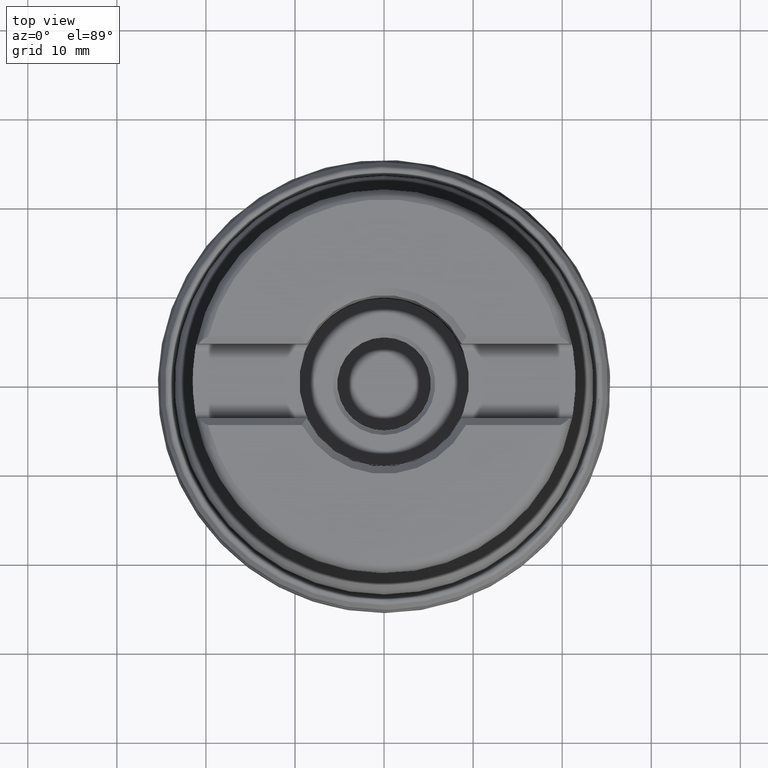
[diagram: clean part render]
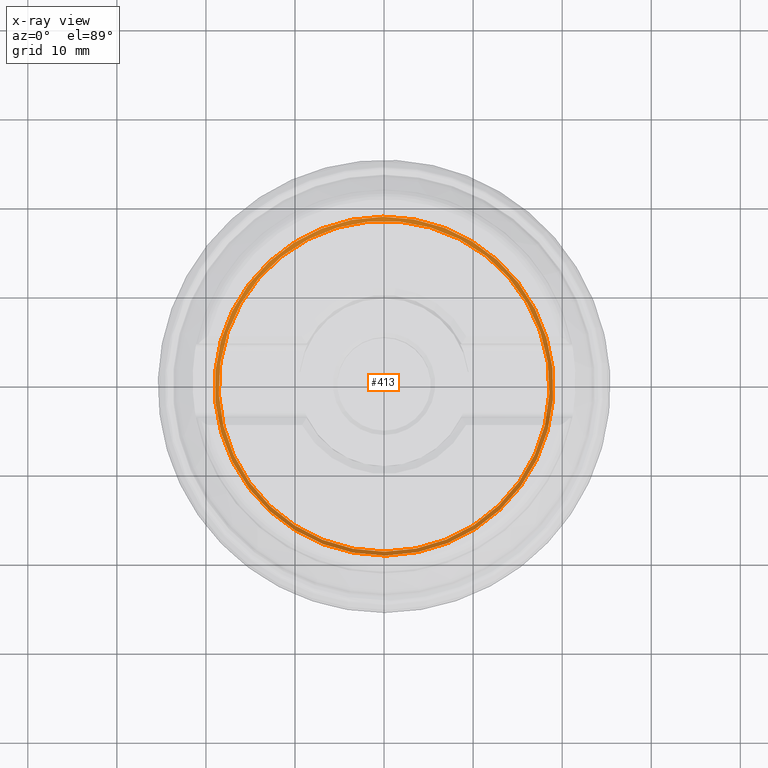
[diagram: x-ray — body ghosted, one internal face saturated and labeled with its STEP entity id]
A machine part, top view, then the same camera in x-ray: the body is ghosted and one INTERNAL B-rep face — a face not visible from any outside direction — is saturated and labeled: STEP entity #413.
In plain terms, the highlighted face is a SurfaceOfRevolution surface.
Its self-contained STEP definition (entity closure, byte-faithful):
#121=SURFACE_OF_REVOLUTION('',#314,#140);
#140=AXIS1_PLACEMENT('',#2393,#1569);
#255=FACE_BOUND('',#577,.T.);
#256=FACE_BOUND('',#578,.T.);
#314=LINE('',#2392,#339);
#339=VECTOR('',#1568,0.93723035470451);
#413=ADVANCED_FACE('',(#255,#256),#121,.T.);
#577=EDGE_LOOP('',(#811));
#578=EDGE_LOOP('',(#812));
#811=ORIENTED_EDGE('',*,*,#1025,.T.);
#812=ORIENTED_EDGE('',*,*,#1026,.F.);
#908=VERTEX_POINT('',#2377);
#909=VERTEX_POINT('',#2391);
#1025=EDGE_CURVE('',#908,#908,#1090,.T.);
#1026=EDGE_CURVE('',#909,#909,#1091,.T.);
#1090=CIRCLE('',#1277,18.5761047240553);
#1091=CIRCLE('',#1278,19.0203153076778);
#1277=AXIS2_PLACEMENT_3D('',#2376,#1563,#1564);
#1278=AXIS2_PLACEMENT_3D('',#2390,#1566,#1567);
#1563=DIRECTION('',(0.,-1.17145536458252E-15,-1.));
#1564=DIRECTION('',(0.,-1.,1.16730841970492E-15));
#1566=DIRECTION('',(0.,-1.17145536458252E-15,-1.));
#1567=DIRECTION('',(0.,-1.,1.18564833562961E-15));
#1568=DIRECTION('',(-0.504773085820265,-0.149902148367309,-0.850137328757156));
#1569=DIRECTION('',(0.,1.17145536458252E-15,1.));
#2376=CARTESIAN_POINT('',(0.,3.96232834714975E-15,3.38239805539823));
#2377=CARTESIAN_POINT('',(0.,-18.5761047240553,3.38239805539825));
#2390=CARTESIAN_POINT('',(0.,4.89571412383304E-15,4.17917256760162));
#2391=CARTESIAN_POINT('',(0.,-19.0203153076778,4.17917256760164));
#2392=CARTESIAN_POINT('',(18.7880929764937,-2.9630991731813,4.17917256760162));
#2393=CARTESIAN_POINT('',(0.,0.,0.));